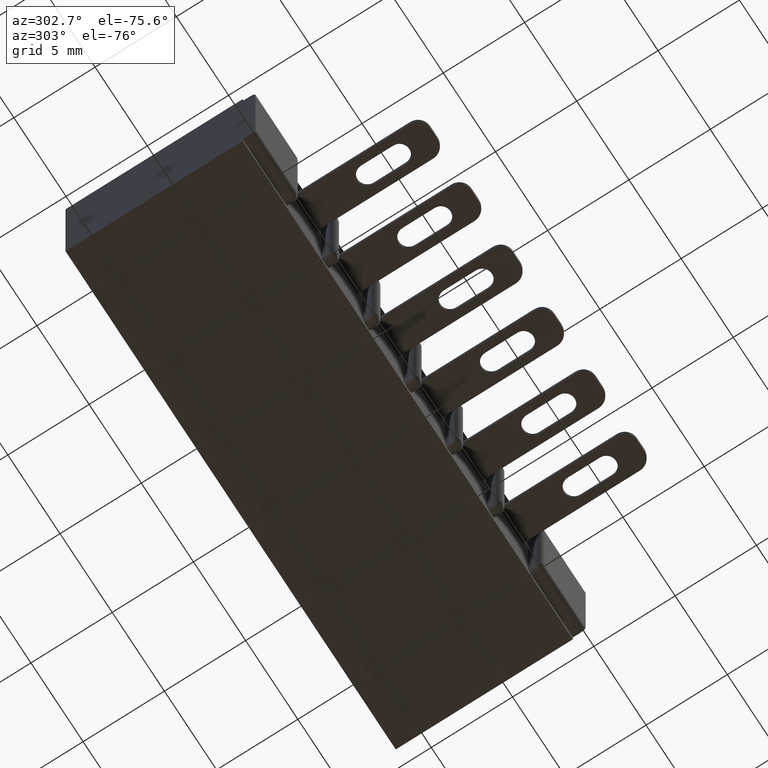
[diagram: clean part render]
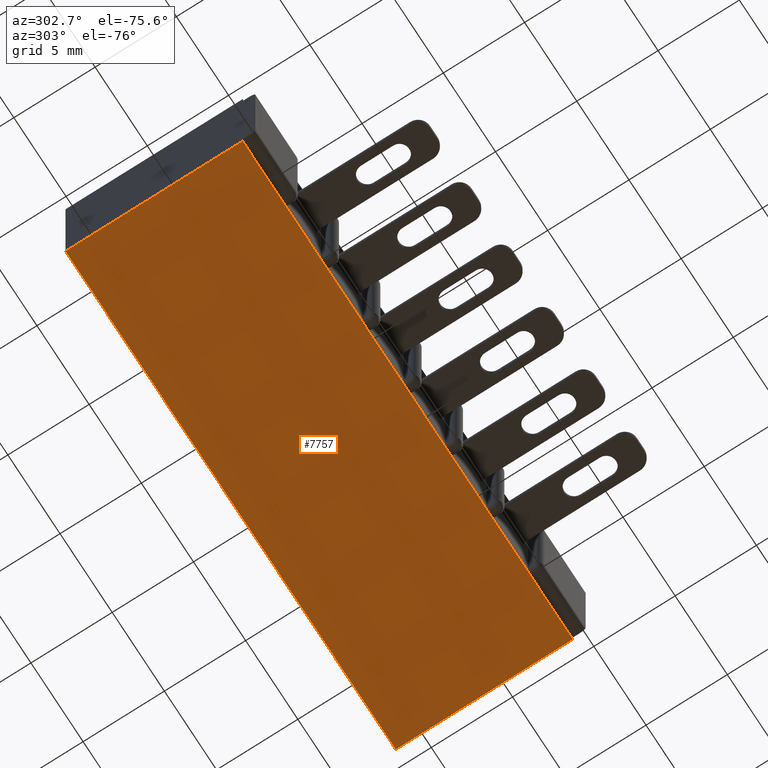
[diagram: same view with one face highlighted and labeled with its STEP entity id]
A machine part, auxiliary view. The second image highlights one B-rep face of the part: STEP entity #7757.
In plain terms, the highlighted planar face has unit normal (0, 0, 1).
Its self-contained STEP definition (entity closure, byte-faithful):
#1 = VERTEX_POINT ( 'NONE', #2929 ) ;
#181 = VECTOR ( 'NONE', #472, 39.37007874015748100 ) ;
#244 = EDGE_LOOP ( 'NONE', ( #6489, #3961, #8118, #9521 ) ) ;
#416 = CARTESIAN_POINT ( 'NONE',  ( 1.544000000000000700, 0.03100000000000000000, -0.3430000000000000300 ) ) ;
#472 = DIRECTION ( 'NONE',  ( -1.000000000000000000, -0.0000000000000000000, -0.0000000000000000000 ) ) ;
#1065 = VECTOR ( 'NONE', #7677, 39.37007874015748100 ) ;
#1080 = VERTEX_POINT ( 'NONE', #416 ) ;
#1272 = DIRECTION ( 'NONE',  ( 0.0000000000000000000, 0.0000000000000000000, 1.000000000000000000 ) ) ;
#1810 = EDGE_CURVE ( 'NONE', #1, #6530, #5474, .T. ) ;
#1818 = VECTOR ( 'NONE', #3267, 39.37007874015748100 ) ;
#2057 = PLANE ( 'NONE',  #8611 ) ;
#2618 = CARTESIAN_POINT ( 'NONE',  ( 0.0000000000000000000, 0.4600000000000000200, -0.3430000000000000300 ) ) ;
#2672 = EDGE_CURVE ( 'NONE', #6007, #6530, #2702, .T. ) ;
#2702 = LINE ( 'NONE', #4151, #7319 ) ;
#2890 = DIRECTION ( 'NONE',  ( 1.000000000000000000, 0.0000000000000000000, -0.0000000000000000000 ) ) ;
#2929 = CARTESIAN_POINT ( 'NONE',  ( 0.2979999999999999300, 0.03100000000000000000, -0.3430000000000000300 ) ) ;
#3142 = CARTESIAN_POINT ( 'NONE',  ( 0.2979999999999997100, 0.0000000000000000000, -0.3430000000000000300 ) ) ;
#3267 = DIRECTION ( 'NONE',  ( -0.0000000000000000000, 1.000000000000000000, -0.0000000000000000000 ) ) ;
#3268 = DIRECTION ( 'NONE',  ( -1.000000000000000000, -0.0000000000000000000, -0.0000000000000000000 ) ) ;
#3961 = ORIENTED_EDGE ( 'NONE', *, *, #4355, .F. ) ;
#4151 = CARTESIAN_POINT ( 'NONE',  ( 0.0000000000000000000, 0.4600000000000000200, -0.3430000000000000300 ) ) ;
#4183 = CARTESIAN_POINT ( 'NONE',  ( 1.544000000000000700, 0.0000000000000000000, -0.3430000000000000300 ) ) ;
#4355 = EDGE_CURVE ( 'NONE', #1080, #6007, #7913, .T. ) ;
#4428 = FACE_OUTER_BOUND ( 'NONE', #244, .T. ) ;
#5474 = LINE ( 'NONE', #3142, #1065 ) ;
#6007 = VERTEX_POINT ( 'NONE', #8363 ) ;
#6174 = LINE ( 'NONE', #8933, #181 ) ;
#6489 = ORIENTED_EDGE ( 'NONE', *, *, #2672, .F. ) ;
#6530 = VERTEX_POINT ( 'NONE', #7197 ) ;
#6595 = EDGE_CURVE ( 'NONE', #1080, #1, #6174, .T. ) ;
#7197 = CARTESIAN_POINT ( 'NONE',  ( 0.2979999999999997100, 0.4600000000000000200, -0.3430000000000000300 ) ) ;
#7319 = VECTOR ( 'NONE', #3268, 39.37007874015748100 ) ;
#7677 = DIRECTION ( 'NONE',  ( -0.0000000000000000000, 1.000000000000000000, -0.0000000000000000000 ) ) ;
#7757 = ADVANCED_FACE ( 'NONE', ( #4428 ), #2057, .F. ) ;
#7913 = LINE ( 'NONE', #4183, #1818 ) ;
#8118 = ORIENTED_EDGE ( 'NONE', *, *, #6595, .T. ) ;
#8363 = CARTESIAN_POINT ( 'NONE',  ( 1.544000000000000700, 0.4600000000000000200, -0.3430000000000000300 ) ) ;
#8611 = AXIS2_PLACEMENT_3D ( 'NONE', #2618, #1272, #2890 ) ;
#8933 = CARTESIAN_POINT ( 'NONE',  ( 1.842000000000000700, 0.03100000000000000000, -0.3430000000000000300 ) ) ;
#9521 = ORIENTED_EDGE ( 'NONE', *, *, #1810, .T. ) ;